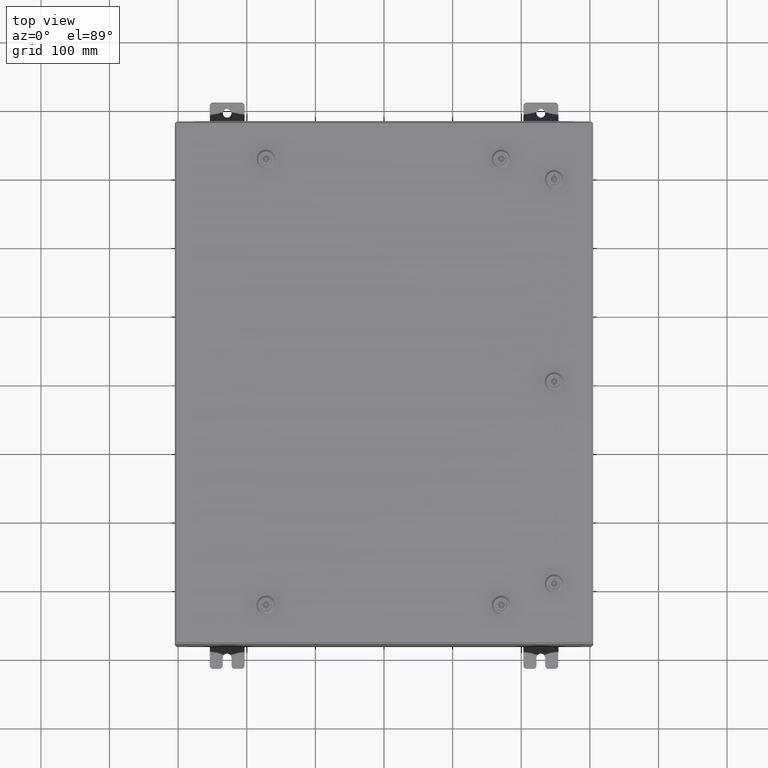
[diagram: clean part render]
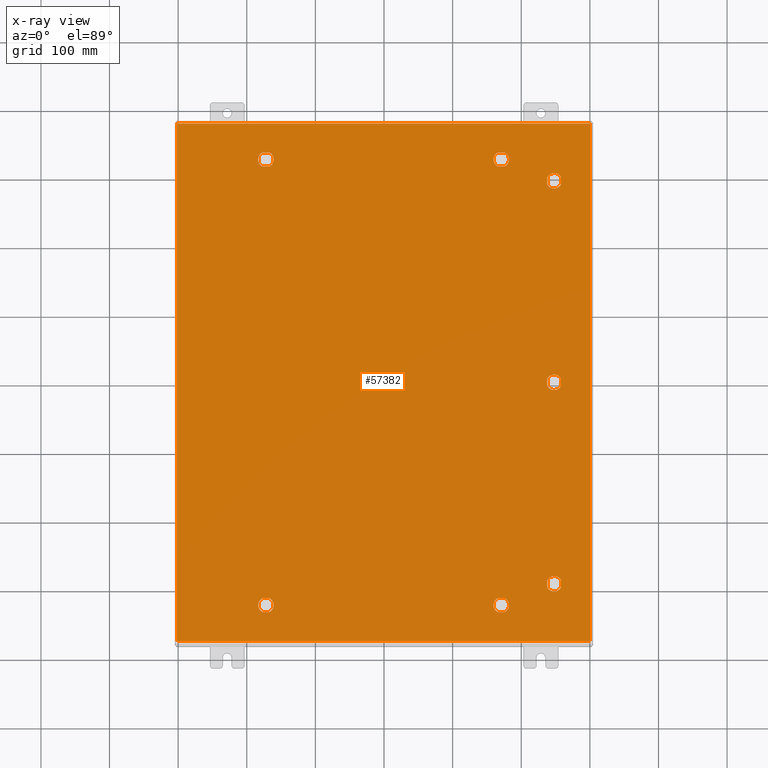
[diagram: x-ray — body ghosted, one internal face saturated and labeled with its STEP entity id]
A machine part, top view, then the same camera in x-ray: the body is ghosted and one INTERNAL B-rep face — a face not visible from any outside direction — is saturated and labeled: STEP entity #57382.
In plain terms, the highlighted planar face has unit normal (0, 0, -1).
Its self-contained STEP definition (entity closure, byte-faithful):
#402 = EDGE_CURVE ( 'NONE', #30557, #18148, #35172, .T. ) ;
#681 = EDGE_CURVE ( 'NONE', #5945, #29471, #63900, .T. ) ;
#805 = VERTEX_POINT ( 'NONE', #49653 ) ;
#1094 = ORIENTED_EDGE ( 'NONE', *, *, #25966, .T. ) ;
#1548 = AXIS2_PLACEMENT_3D ( 'NONE', #36167, #6493, #41132 ) ;
#1704 = DIRECTION ( 'NONE',  ( -1.000000000000000000, 0.0000000000000000000, 0.0000000000000000000 ) ) ;
#1781 = CARTESIAN_POINT ( 'NONE',  ( 6.550547624732099700, 12.39280000000000100, -0.07470000000000003000 ) ) ;
#2013 = CARTESIAN_POINT ( 'NONE',  ( 9.392800000000017100, -11.76195237526790500, -0.07470000000000003000 ) ) ;
#2717 = CARTESIAN_POINT ( 'NONE',  ( -6.949452375267869200, -12.39280000000000100, -0.07470000000000003000 ) ) ;
#2867 = DIRECTION ( 'NONE',  ( -0.0000000000000000000, -0.0000000000000000000, 1.000000000000000000 ) ) ;
#2883 = LINE ( 'NONE', #16751, #43902 ) ;
#2888 = VERTEX_POINT ( 'NONE', #6117 ) ;
#3058 = ORIENTED_EDGE ( 'NONE', *, *, #38019, .T. ) ;
#3141 = VECTOR ( 'NONE', #20493, 39.37007874015748100 ) ;
#3710 = AXIS2_PLACEMENT_3D ( 'NONE', #19213, #53998, #24218 ) ;
#3942 = EDGE_LOOP ( 'NONE', ( #64135, #36813, #4300, #39885 ) ) ;
#4017 = DIRECTION ( 'NONE',  ( -0.0000000000000000000, -0.0000000000000000000, 1.000000000000000000 ) ) ;
#4300 = ORIENTED_EDGE ( 'NONE', *, *, #40919, .T. ) ;
#4396 = VERTEX_POINT ( 'NONE', #33080 ) ;
#4746 = CARTESIAN_POINT ( 'NONE',  ( 10.18280000000000600, 0.1994523752679009100, -0.07470000000000000300 ) ) ;
#4906 = CARTESIAN_POINT ( 'NONE',  ( 9.392800000000015400, 0.1994523752679053800, -0.07470000000000003000 ) ) ;
#4921 = DIRECTION ( 'NONE',  ( -1.000000000000000000, 1.095739467627835200E-014, 0.0000000000000000000 ) ) ;
#5312 = CARTESIAN_POINT ( 'NONE',  ( 10.18280000000000600, -11.76195237526789900, -0.07470000000000003000 ) ) ;
#5361 = EDGE_CURVE ( 'NONE', #63397, #21407, #62866, .T. ) ;
#5407 = VERTEX_POINT ( 'NONE', #13595 ) ;
#5716 = CARTESIAN_POINT ( 'NONE',  ( 6.949452375267867400, -13.18279999999999300, -0.07470000000000003000 ) ) ;
#5847 = CARTESIAN_POINT ( 'NONE',  ( 9.787800000000007800, 11.56250000000001600, -0.07470000000000003000 ) ) ;
#5945 = VERTEX_POINT ( 'NONE', #10628 ) ;
#5997 = CIRCLE ( 'NONE', #39726, 0.4424999999999972800 ) ;
#6117 = CARTESIAN_POINT ( 'NONE',  ( -6.550547624732099700, 12.39279999999999800, -0.07470000000000000300 ) ) ;
#6164 = DIRECTION ( 'NONE',  ( -0.0000000000000000000, -0.0000000000000000000, 1.000000000000000000 ) ) ;
#6303 = DIRECTION ( 'NONE',  ( -1.000000000000000000, 0.0000000000000000000, 0.0000000000000000000 ) ) ;
#6324 = DIRECTION ( 'NONE',  ( -0.0000000000000000000, -0.0000000000000000000, 1.000000000000000000 ) ) ;
#6493 = DIRECTION ( 'NONE',  ( -0.0000000000000000000, -0.0000000000000000000, 1.000000000000000000 ) ) ;
#6522 = VERTEX_POINT ( 'NONE', #63119 ) ;
#6545 = ORIENTED_EDGE ( 'NONE', *, *, #402, .T. ) ;
#7694 = CIRCLE ( 'NONE', #40988, 0.4424999999999983400 ) ;
#7710 = VERTEX_POINT ( 'NONE', #44496 ) ;
#7747 = VERTEX_POINT ( 'NONE', #55777 ) ;
#7807 = VECTOR ( 'NONE', #36910, 39.37007874015748100 ) ;
#7886 = CARTESIAN_POINT ( 'NONE',  ( 6.550547624732101500, -12.39280000000000100, -0.07470000000000000300 ) ) ;
#7896 = CARTESIAN_POINT ( 'NONE',  ( 6.749999999999985800, -12.78779999999999700, -0.07470000000000003000 ) ) ;
#8446 = LINE ( 'NONE', #24631, #20025 ) ;
#8583 = CIRCLE ( 'NONE', #61103, 0.4424999999999972800 ) ;
#8841 = CARTESIAN_POINT ( 'NONE',  ( -6.307499999999987700, 12.78779999999999400, -0.07470000000000003000 ) ) ;
#8922 = DIRECTION ( 'NONE',  ( -1.000000000000000000, -1.095739467627835200E-014, 0.0000000000000000000 ) ) ;
#9034 = FACE_BOUND ( 'NONE', #52740, .T. ) ;
#9656 = VERTEX_POINT ( 'NONE', #12652 ) ;
#9668 = CARTESIAN_POINT ( 'NONE',  ( 6.550547624732099700, 12.39280000000000100, -0.07470000000000003000 ) ) ;
#9707 = LINE ( 'NONE', #48599, #34521 ) ;
#9779 = CIRCLE ( 'NONE', #25147, 0.4424999999999972800 ) ;
#9865 = DIRECTION ( 'NONE',  ( -8.218046007208770500E-015, -1.000000000000000000, 0.0000000000000000000 ) ) ;
#9889 = DIRECTION ( 'NONE',  ( -5.478697338139235800E-015, 1.000000000000000000, 0.0000000000000000000 ) ) ;
#10547 = LINE ( 'NONE', #4906, #60272 ) ;
#10628 = CARTESIAN_POINT ( 'NONE',  ( 9.392800000000011800, 11.36304762473213300, -0.07470000000000003000 ) ) ;
#10889 = LINE ( 'NONE', #12202, #7807 ) ;
#10952 = CARTESIAN_POINT ( 'NONE',  ( 10.18280000000000600, -0.1994523752678676000, -0.07470000000000003000 ) ) ;
#11051 = ORIENTED_EDGE ( 'NONE', *, *, #63249, .T. ) ;
#11188 = DIRECTION ( 'NONE',  ( -0.0000000000000000000, -0.0000000000000000000, 1.000000000000000000 ) ) ;
#11372 = ORIENTED_EDGE ( 'NONE', *, *, #49932, .T. ) ;
#11917 = CARTESIAN_POINT ( 'NONE',  ( 6.550547624732093500, 13.18279999999999000, -0.07470000000000000300 ) ) ;
#11960 = VERTEX_POINT ( 'NONE', #64157 ) ;
#11999 = CARTESIAN_POINT ( 'NONE',  ( 9.392800000000013600, -11.36304762473213300, -0.07470000000000003000 ) ) ;
#12094 = ORIENTED_EDGE ( 'NONE', *, *, #681, .T. ) ;
#12202 = CARTESIAN_POINT ( 'NONE',  ( 10.18280000000000600, -11.76195237526789900, -0.07470000000000003000 ) ) ;
#12411 = CARTESIAN_POINT ( 'NONE',  ( -6.550547624732099700, 12.39279999999999800, -0.07470000000000003000 ) ) ;
#12468 = ORIENTED_EDGE ( 'NONE', *, *, #45424, .F. ) ;
#12589 = CARTESIAN_POINT ( 'NONE',  ( -6.749999999999985800, -12.78779999999999900, -0.07470000000000003000 ) ) ;
#12652 = CARTESIAN_POINT ( 'NONE',  ( 10.18280000000000200, 11.76195237526789900, -0.07470000000000000300 ) ) ;
#12713 = EDGE_CURVE ( 'NONE', #805, #38322, #61273, .T. ) ;
#12844 = DIRECTION ( 'NONE',  ( -1.000000000000000000, 0.0000000000000000000, 0.0000000000000000000 ) ) ;
#13036 = LINE ( 'NONE', #25143, #52671 ) ;
#13264 = DIRECTION ( 'NONE',  ( 0.0000000000000000000, -1.000000000000000000, 0.0000000000000000000 ) ) ;
#13595 = CARTESIAN_POINT ( 'NONE',  ( 6.949452375267869200, 12.39280000000000100, -0.07470000000000003000 ) ) ;
#14090 = CARTESIAN_POINT ( 'NONE',  ( -6.749999999999985800, -12.78779999999999900, -0.07470000000000003000 ) ) ;
#14253 = ORIENTED_EDGE ( 'NONE', *, *, #37928, .T. ) ;
#14344 = CARTESIAN_POINT ( 'NONE',  ( -6.949452375267865600, 13.18279999999999000, -0.07470000000000003000 ) ) ;
#14445 = VERTEX_POINT ( 'NONE', #9668 ) ;
#14565 = EDGE_CURVE ( 'NONE', #7747, #20682, #21518, .T. ) ;
#14677 = EDGE_CURVE ( 'NONE', #23113, #6522, #31595, .T. ) ;
#14739 = EDGE_CURVE ( 'NONE', #21589, #24009, #18369, .T. ) ;
#14748 = AXIS2_PLACEMENT_3D ( 'NONE', #35998, #6324, #40965 ) ;
#14894 = DIRECTION ( 'NONE',  ( -0.0000000000000000000, -0.0000000000000000000, 1.000000000000000000 ) ) ;
#15833 = CIRCLE ( 'NONE', #35291, 0.4424999999999983400 ) ;
#16423 = AXIS2_PLACEMENT_3D ( 'NONE', #22079, #27060, #61817 ) ;
#16557 = CARTESIAN_POINT ( 'NONE',  ( 6.949452375267869200, -12.39280000000000100, -0.07470000000000003000 ) ) ;
#16624 = CARTESIAN_POINT ( 'NONE',  ( 11.84980000000000000, 14.84980000000000200, -0.07469999999999910000 ) ) ;
#16751 = CARTESIAN_POINT ( 'NONE',  ( -11.84980000000000000, -14.84979999999999500, -0.07470000000000019700 ) ) ;
#17076 = AXIS2_PLACEMENT_3D ( 'NONE', #43773, #32695, #22523 ) ;
#17091 = PLANE ( 'NONE',  #16423 ) ;
#17572 = DIRECTION ( 'NONE',  ( -1.000000000000000000, -4.938934225833714700E-015, 0.0000000000000000000 ) ) ;
#17746 = CARTESIAN_POINT ( 'NONE',  ( -6.550547624732101500, -12.39280000000000300, -0.07470000000000003000 ) ) ;
#18148 = VERTEX_POINT ( 'NONE', #59872 ) ;
#18174 = VECTOR ( 'NONE', #29434, 39.37007874015748100 ) ;
#18276 = EDGE_CURVE ( 'NONE', #62208, #7747, #15833, .T. ) ;
#18369 = CIRCLE ( 'NONE', #36456, 0.4424999999999972800 ) ;
#19065 = DIRECTION ( 'NONE',  ( -1.000000000000000000, 0.0000000000000000000, 0.0000000000000000000 ) ) ;
#19213 = CARTESIAN_POINT ( 'NONE',  ( 9.787800000000007800, 1.529834876451990400E-014, -0.07470000000000003000 ) ) ;
#19791 = CIRCLE ( 'NONE', #3710, 0.4424999999999972800 ) ;
#19942 = VECTOR ( 'NONE', #26631, 39.37007874015748100 ) ;
#20025 = VECTOR ( 'NONE', #9889, 39.37007874015748100 ) ;
#20276 = VERTEX_POINT ( 'NONE', #61693 ) ;
#20475 = DIRECTION ( 'NONE',  ( 1.000000000000000000, 1.095739467627835200E-014, 0.0000000000000000000 ) ) ;
#20493 = DIRECTION ( 'NONE',  ( 1.000000000000000000, -1.095739467627835200E-014, 0.0000000000000000000 ) ) ;
#20682 = VERTEX_POINT ( 'NONE', #54273 ) ;
#20724 = DIRECTION ( 'NONE',  ( -0.0000000000000000000, -0.0000000000000000000, 1.000000000000000000 ) ) ;
#21191 = LINE ( 'NONE', #16624, #60858 ) ;
#21275 = CARTESIAN_POINT ( 'NONE',  ( 10.18280000000000600, 11.36304762473213100, -0.07470000000000003000 ) ) ;
#21366 = CARTESIAN_POINT ( 'NONE',  ( 6.749999999999985800, -12.78779999999999700, -0.07470000000000003000 ) ) ;
#21407 = VERTEX_POINT ( 'NONE', #24346 ) ;
#21427 = VECTOR ( 'NONE', #31641, 39.37007874015748100 ) ;
#21518 = LINE ( 'NONE', #50253, #47864 ) ;
#21589 = VERTEX_POINT ( 'NONE', #5716 ) ;
#22079 = CARTESIAN_POINT ( 'NONE',  ( 0.0000000000000000000, 0.0000000000000000000, -0.07470000000000000300 ) ) ;
#22240 = FACE_BOUND ( 'NONE', #53709, .T. ) ;
#22413 = VERTEX_POINT ( 'NONE', #16557 ) ;
#22523 = DIRECTION ( 'NONE',  ( -1.000000000000000000, 0.0000000000000000000, 0.0000000000000000000 ) ) ;
#22774 = CIRCLE ( 'NONE', #1548, 0.4424999999999972800 ) ;
#22805 = ORIENTED_EDGE ( 'NONE', *, *, #43308, .T. ) ;
#23037 = EDGE_CURVE ( 'NONE', #22413, #44304, #62406, .T. ) ;
#23113 = VERTEX_POINT ( 'NONE', #41222 ) ;
#23126 = VERTEX_POINT ( 'NONE', #56249 ) ;
#23284 = CARTESIAN_POINT ( 'NONE',  ( 10.18280000000000700, -11.36304762473213100, -0.07470000000000003000 ) ) ;
#23758 = FACE_BOUND ( 'NONE', #3942, .T. ) ;
#24009 = VERTEX_POINT ( 'NONE', #33291 ) ;
#24109 = CARTESIAN_POINT ( 'NONE',  ( 6.749999999999984900, 12.78779999999999700, -0.07470000000000003000 ) ) ;
#24218 = DIRECTION ( 'NONE',  ( -1.000000000000000000, 2.664535259100377700E-015, 0.0000000000000000000 ) ) ;
#24308 = LINE ( 'NONE', #47952, #63913 ) ;
#24346 = CARTESIAN_POINT ( 'NONE',  ( -6.550547624732093500, 13.18279999999998400, -0.07470000000000003000 ) ) ;
#24631 = CARTESIAN_POINT ( 'NONE',  ( 10.18280000000000200, 0.1994523752679009100, -0.07470000000000003000 ) ) ;
#25032 = ORIENTED_EDGE ( 'NONE', *, *, #32994, .T. ) ;
#25143 = CARTESIAN_POINT ( 'NONE',  ( 9.392800000000015400, 11.76195237526790500, -0.07470000000000003000 ) ) ;
#25147 = AXIS2_PLACEMENT_3D ( 'NONE', #28415, #63161, #33397 ) ;
#25223 = VECTOR ( 'NONE', #4921, 39.37007874015748100 ) ;
#25236 = AXIS2_PLACEMENT_3D ( 'NONE', #5847, #6164, #6303 ) ;
#25245 = VERTEX_POINT ( 'NONE', #10952 ) ;
#25620 = EDGE_LOOP ( 'NONE', ( #32500, #62834, #3058, #34338 ) ) ;
#25919 = EDGE_CURVE ( 'NONE', #38322, #62208, #59112, .T. ) ;
#25966 = EDGE_CURVE ( 'NONE', #63139, #14445, #34197, .T. ) ;
#26092 = LINE ( 'NONE', #12411, #64127 ) ;
#26358 = DIRECTION ( 'NONE',  ( -1.000000000000000000, 0.0000000000000000000, 0.0000000000000000000 ) ) ;
#26631 = DIRECTION ( 'NONE',  ( 1.000000000000000000, 0.0000000000000000000, 0.0000000000000000000 ) ) ;
#26729 = DIRECTION ( 'NONE',  ( 1.000000000000000000, -0.0000000000000000000, -0.0000000000000000000 ) ) ;
#27060 = DIRECTION ( 'NONE',  ( 0.0000000000000000000, 0.0000000000000000000, -1.000000000000000000 ) ) ;
#27199 = CARTESIAN_POINT ( 'NONE',  ( 9.392800000000017100, -11.76195237526790500, -0.07470000000000000300 ) ) ;
#28415 = CARTESIAN_POINT ( 'NONE',  ( -6.749999999999985800, -12.78779999999999900, -0.07470000000000003000 ) ) ;
#28880 = EDGE_CURVE ( 'NONE', #51379, #47217, #7694, .T. ) ;
#28985 = VERTEX_POINT ( 'NONE', #27199 ) ;
#29072 = DIRECTION ( 'NONE',  ( -1.000000000000000000, 0.0000000000000000000, 0.0000000000000000000 ) ) ;
#29236 = CARTESIAN_POINT ( 'NONE',  ( 11.84980000000000000, -14.84979999999999300, -0.07470000000000019700 ) ) ;
#29434 = DIRECTION ( 'NONE',  ( 0.0000000000000000000, 1.000000000000000000, 0.0000000000000000000 ) ) ;
#29444 = AXIS2_PLACEMENT_3D ( 'NONE', #50487, #20724, #55513 ) ;
#29471 = VERTEX_POINT ( 'NONE', #21275 ) ;
#29572 = LINE ( 'NONE', #62740, #42788 ) ;
#29645 = AXIS2_PLACEMENT_3D ( 'NONE', #24109, #58886, #29072 ) ;
#29743 = AXIS2_PLACEMENT_3D ( 'NONE', #40874, #11188, #45870 ) ;
#29868 = DIRECTION ( 'NONE',  ( -8.218046007208784700E-015, -1.000000000000000000, 0.0000000000000000000 ) ) ;
#30214 = EDGE_CURVE ( 'NONE', #14445, #5407, #59618, .T. ) ;
#30254 = VERTEX_POINT ( 'NONE', #52056 ) ;
#30450 = EDGE_CURVE ( 'NONE', #2888, #63397, #53376, .T. ) ;
#30557 = VERTEX_POINT ( 'NONE', #14344 ) ;
#31325 = DIRECTION ( 'NONE',  ( -0.0000000000000000000, -0.0000000000000000000, 1.000000000000000000 ) ) ;
#31448 = ORIENTED_EDGE ( 'NONE', *, *, #39359, .T. ) ;
#31595 = CIRCLE ( 'NONE', #29743, 0.4424999999999972800 ) ;
#31641 = DIRECTION ( 'NONE',  ( 8.218046007208784700E-015, -1.000000000000000000, 0.0000000000000000000 ) ) ;
#32393 = VERTEX_POINT ( 'NONE', #5312 ) ;
#32500 = ORIENTED_EDGE ( 'NONE', *, *, #28880, .T. ) ;
#32501 = CARTESIAN_POINT ( 'NONE',  ( 6.749999999999984900, 12.78779999999999700, -0.07470000000000003000 ) ) ;
#32695 = DIRECTION ( 'NONE',  ( -0.0000000000000000000, -0.0000000000000000000, 1.000000000000000000 ) ) ;
#32994 = EDGE_CURVE ( 'NONE', #6522, #63139, #9707, .T. ) ;
#33080 = CARTESIAN_POINT ( 'NONE',  ( -11.84980000000000000, 14.84980000000000200, -0.07470000000000000300 ) ) ;
#33291 = CARTESIAN_POINT ( 'NONE',  ( 7.192499999999983000, -12.78779999999999700, -0.07470000000000003000 ) ) ;
#33397 = DIRECTION ( 'NONE',  ( -1.000000000000000000, 0.0000000000000000000, 0.0000000000000000000 ) ) ;
#33444 = EDGE_CURVE ( 'NONE', #47217, #28985, #59505, .T. ) ;
#33650 = CARTESIAN_POINT ( 'NONE',  ( -6.749999999999984900, 12.78779999999999400, -0.07470000000000003000 ) ) ;
#33734 = VERTEX_POINT ( 'NONE', #53115 ) ;
#33855 = DIRECTION ( 'NONE',  ( -1.000000000000000000, 5.478697338139250800E-015, 0.0000000000000000000 ) ) ;
#34197 = CIRCLE ( 'NONE', #29645, 0.4424999999999972800 ) ;
#34227 = ORIENTED_EDGE ( 'NONE', *, *, #14565, .T. ) ;
#34338 = ORIENTED_EDGE ( 'NONE', *, *, #63796, .T. ) ;
#34521 = VECTOR ( 'NONE', #8922, 39.37007874015748100 ) ;
#34736 = CIRCLE ( 'NONE', #14748, 0.4424999999999972800 ) ;
#34875 = CARTESIAN_POINT ( 'NONE',  ( -6.749999999999984900, 12.78779999999999400, -0.07470000000000003000 ) ) ;
#35088 = DIRECTION ( 'NONE',  ( -0.0000000000000000000, -0.0000000000000000000, 1.000000000000000000 ) ) ;
#35172 = CIRCLE ( 'NONE', #62231, 0.4424999999999972800 ) ;
#35291 = AXIS2_PLACEMENT_3D ( 'NONE', #12589, #47271, #17572 ) ;
#35309 = DIRECTION ( 'NONE',  ( -1.000000000000000000, 0.0000000000000000000, 0.0000000000000000000 ) ) ;
#35415 = FACE_BOUND ( 'NONE', #41677, .T. ) ;
#35998 = CARTESIAN_POINT ( 'NONE',  ( 9.787800000000009600, -11.56250000000001600, -0.07470000000000003000 ) ) ;
#36088 = EDGE_LOOP ( 'NONE', ( #12094, #51798, #22805, #14253 ) ) ;
#36129 = ORIENTED_EDGE ( 'NONE', *, *, #23037, .T. ) ;
#36166 = EDGE_CURVE ( 'NONE', #51322, #21589, #55913, .T. ) ;
#36167 = CARTESIAN_POINT ( 'NONE',  ( 6.749999999999985800, -12.78779999999999700, -0.07470000000000003000 ) ) ;
#36456 = AXIS2_PLACEMENT_3D ( 'NONE', #21366, #56135, #26358 ) ;
#36813 = ORIENTED_EDGE ( 'NONE', *, *, #37213, .T. ) ;
#36859 = ORIENTED_EDGE ( 'NONE', *, *, #57850, .T. ) ;
#36910 = DIRECTION ( 'NONE',  ( 5.478697338139220100E-015, 1.000000000000000000, 0.0000000000000000000 ) ) ;
#37213 = EDGE_CURVE ( 'NONE', #25245, #43111, #8446, .T. ) ;
#37493 = DIRECTION ( 'NONE',  ( -1.000000000000000000, 0.0000000000000000000, 0.0000000000000000000 ) ) ;
#37928 = EDGE_CURVE ( 'NONE', #23126, #5945, #13036, .T. ) ;
#38019 = EDGE_CURVE ( 'NONE', #28985, #32393, #34736, .T. ) ;
#38322 = VERTEX_POINT ( 'NONE', #17746 ) ;
#38392 = AXIS2_PLACEMENT_3D ( 'NONE', #14090, #48809, #19065 ) ;
#38633 = DIRECTION ( 'NONE',  ( -1.000000000000000000, 0.0000000000000000000, 0.0000000000000000000 ) ) ;
#39130 = EDGE_CURVE ( 'NONE', #30254, #25245, #53337, .T. ) ;
#39359 = EDGE_CURVE ( 'NONE', #24009, #22413, #5997, .T. ) ;
#39559 = CARTESIAN_POINT ( 'NONE',  ( -6.550547624732093500, 13.18279999999998400, -0.07470000000000003000 ) ) ;
#39726 = AXIS2_PLACEMENT_3D ( 'NONE', #7896, #42548, #12844 ) ;
#39885 = ORIENTED_EDGE ( 'NONE', *, *, #40294, .T. ) ;
#40294 = EDGE_CURVE ( 'NONE', #20276, #30254, #10547, .T. ) ;
#40566 = CARTESIAN_POINT ( 'NONE',  ( 6.550547624732101500, -12.39280000000000100, -0.07470000000000003000 ) ) ;
#40786 = DIRECTION ( 'NONE',  ( -1.000000000000000000, 0.0000000000000000000, 0.0000000000000000000 ) ) ;
#40874 = CARTESIAN_POINT ( 'NONE',  ( 6.749999999999984900, 12.78779999999999700, -0.07470000000000003000 ) ) ;
#40919 = EDGE_CURVE ( 'NONE', #43111, #20276, #19791, .T. ) ;
#40965 = DIRECTION ( 'NONE',  ( -1.000000000000000000, 0.0000000000000000000, 0.0000000000000000000 ) ) ;
#40988 = AXIS2_PLACEMENT_3D ( 'NONE', #61114, #31325, #1704 ) ;
#41132 = DIRECTION ( 'NONE',  ( -1.000000000000000000, 0.0000000000000000000, 0.0000000000000000000 ) ) ;
#41222 = CARTESIAN_POINT ( 'NONE',  ( 7.192499999999982100, 12.78779999999999700, -0.07470000000000003000 ) ) ;
#41399 = ORIENTED_EDGE ( 'NONE', *, *, #57622, .T. ) ;
#41677 = EDGE_LOOP ( 'NONE', ( #54157, #34227, #36859, #50148, #48233 ) ) ;
#42548 = DIRECTION ( 'NONE',  ( -0.0000000000000000000, -0.0000000000000000000, 1.000000000000000000 ) ) ;
#42609 = CARTESIAN_POINT ( 'NONE',  ( 6.550547624732094400, -13.18279999999999000, -0.07470000000000003000 ) ) ;
#42788 = VECTOR ( 'NONE', #52963, 39.37007874015748100 ) ;
#42856 = EDGE_LOOP ( 'NONE', ( #60264, #31448, #36129, #11372, #58337 ) ) ;
#43111 = VERTEX_POINT ( 'NONE', #4746 ) ;
#43308 = EDGE_CURVE ( 'NONE', #9656, #23126, #52433, .T. ) ;
#43773 = CARTESIAN_POINT ( 'NONE',  ( -6.749999999999984900, 12.78779999999999400, -0.07470000000000003000 ) ) ;
#43902 = VECTOR ( 'NONE', #26729, 39.37007874015748100 ) ;
#44289 = AXIS2_PLACEMENT_3D ( 'NONE', #44600, #14894, #49636 ) ;
#44304 = VERTEX_POINT ( 'NONE', #7886 ) ;
#44496 = CARTESIAN_POINT ( 'NONE',  ( 11.84980000000000000, 14.84980000000000200, -0.07470000000000000300 ) ) ;
#44543 = LINE ( 'NONE', #29236, #18174 ) ;
#44600 = CARTESIAN_POINT ( 'NONE',  ( 9.787800000000007800, 1.529834876451990400E-014, -0.07470000000000003000 ) ) ;
#45424 = EDGE_CURVE ( 'NONE', #4396, #33734, #24308, .T. ) ;
#45858 = VECTOR ( 'NONE', #33855, 39.37007874015748100 ) ;
#45870 = DIRECTION ( 'NONE',  ( -1.000000000000000000, 0.0000000000000000000, 0.0000000000000000000 ) ) ;
#46878 = ORIENTED_EDGE ( 'NONE', *, *, #5361, .T. ) ;
#47100 = DIRECTION ( 'NONE',  ( 1.000000000000000000, 0.0000000000000000000, 0.0000000000000000000 ) ) ;
#47217 = VERTEX_POINT ( 'NONE', #11999 ) ;
#47271 = DIRECTION ( 'NONE',  ( -0.0000000000000000000, -0.0000000000000000000, 1.000000000000000000 ) ) ;
#47864 = VECTOR ( 'NONE', #20475, 39.37007874015748100 ) ;
#47952 = CARTESIAN_POINT ( 'NONE',  ( -11.84980000000000000, 14.84980000000000000, -0.07470000000000019700 ) ) ;
#48233 = ORIENTED_EDGE ( 'NONE', *, *, #25919, .T. ) ;
#48599 = CARTESIAN_POINT ( 'NONE',  ( 6.550547624732093500, 13.18279999999999000, -0.07470000000000003000 ) ) ;
#48605 = FACE_BOUND ( 'NONE', #42856, .T. ) ;
#48809 = DIRECTION ( 'NONE',  ( -0.0000000000000000000, -0.0000000000000000000, 1.000000000000000000 ) ) ;
#49165 = VECTOR ( 'NONE', #40786, 39.37007874015748100 ) ;
#49315 = ORIENTED_EDGE ( 'NONE', *, *, #14677, .T. ) ;
#49636 = DIRECTION ( 'NONE',  ( -1.000000000000000000, 8.881784197001274000E-016, 0.0000000000000000000 ) ) ;
#49653 = CARTESIAN_POINT ( 'NONE',  ( -6.307499999999988600, -12.78779999999999900, -0.07470000000000003000 ) ) ;
#49932 = EDGE_CURVE ( 'NONE', #44304, #51322, #22774, .T. ) ;
#50018 = EDGE_CURVE ( 'NONE', #7710, #4396, #21191, .T. ) ;
#50148 = ORIENTED_EDGE ( 'NONE', *, *, #12713, .T. ) ;
#50253 = CARTESIAN_POINT ( 'NONE',  ( -6.550547624732094400, -13.18279999999999100, -0.07470000000000003000 ) ) ;
#50272 = CARTESIAN_POINT ( 'NONE',  ( 6.550547624732094400, -13.18279999999999000, -0.07470000000000003000 ) ) ;
#50487 = CARTESIAN_POINT ( 'NONE',  ( 9.787800000000007800, 11.56250000000001600, -0.07470000000000003000 ) ) ;
#51322 = VERTEX_POINT ( 'NONE', #42609 ) ;
#51379 = VERTEX_POINT ( 'NONE', #23284 ) ;
#51795 = ORIENTED_EDGE ( 'NONE', *, *, #60608, .T. ) ;
#51798 = ORIENTED_EDGE ( 'NONE', *, *, #52151, .T. ) ;
#52056 = CARTESIAN_POINT ( 'NONE',  ( 9.392800000000011800, -0.1994523752678671600, -0.07470000000000003000 ) ) ;
#52151 = EDGE_CURVE ( 'NONE', #29471, #9656, #29572, .T. ) ;
#52433 = CIRCLE ( 'NONE', #29444, 0.4424999999999972800 ) ;
#52671 = VECTOR ( 'NONE', #29868, 39.37007874015748100 ) ;
#52740 = EDGE_LOOP ( 'NONE', ( #6545, #41399, #60949, #46878, #51795 ) ) ;
#52963 = DIRECTION ( 'NONE',  ( -5.478697338139220100E-015, 1.000000000000000000, 0.0000000000000000000 ) ) ;
#53115 = CARTESIAN_POINT ( 'NONE',  ( -11.84980000000000000, -14.84979999999999500, -0.07470000000000000300 ) ) ;
#53337 = CIRCLE ( 'NONE', #44289, 0.4424999999999972800 ) ;
#53376 = CIRCLE ( 'NONE', #59373, 0.4424999999999972800 ) ;
#53709 = EDGE_LOOP ( 'NONE', ( #11051, #49315, #25032, #1094, #54584 ) ) ;
#53998 = DIRECTION ( 'NONE',  ( -0.0000000000000000000, -0.0000000000000000000, 1.000000000000000000 ) ) ;
#54157 = ORIENTED_EDGE ( 'NONE', *, *, #18276, .T. ) ;
#54273 = CARTESIAN_POINT ( 'NONE',  ( -6.550547624732094400, -13.18279999999999100, -0.07470000000000000300 ) ) ;
#54584 = ORIENTED_EDGE ( 'NONE', *, *, #30214, .T. ) ;
#55468 = EDGE_LOOP ( 'NONE', ( #64133, #64192, #12468, #55945 ) ) ;
#55513 = DIRECTION ( 'NONE',  ( -1.000000000000000000, 0.0000000000000000000, 0.0000000000000000000 ) ) ;
#55777 = CARTESIAN_POINT ( 'NONE',  ( -6.949452375267867400, -13.18279999999999500, -0.07470000000000003000 ) ) ;
#55913 = LINE ( 'NONE', #50272, #3141 ) ;
#55945 = ORIENTED_EDGE ( 'NONE', *, *, #50018, .F. ) ;
#56135 = DIRECTION ( 'NONE',  ( -0.0000000000000000000, -0.0000000000000000000, 1.000000000000000000 ) ) ;
#56249 = CARTESIAN_POINT ( 'NONE',  ( 9.392800000000015400, 11.76195237526790500, -0.07470000000000003000 ) ) ;
#57382 = ADVANCED_FACE ( 'NONE', ( #61871, #63387, #23758, #48605, #35415, #22240, #9034, #60314 ), #17091, .T. ) ;
#57584 = EDGE_CURVE ( 'NONE', #33734, #11960, #2883, .T. ) ;
#57622 = EDGE_CURVE ( 'NONE', #18148, #2888, #26092, .T. ) ;
#57850 = EDGE_CURVE ( 'NONE', #20682, #805, #9779, .T. ) ;
#58337 = ORIENTED_EDGE ( 'NONE', *, *, #36166, .T. ) ;
#58886 = DIRECTION ( 'NONE',  ( -0.0000000000000000000, -0.0000000000000000000, 1.000000000000000000 ) ) ;
#59112 = LINE ( 'NONE', #63607, #45858 ) ;
#59373 = AXIS2_PLACEMENT_3D ( 'NONE', #33650, #4017, #38633 ) ;
#59505 = LINE ( 'NONE', #2013, #21427 ) ;
#59618 = LINE ( 'NONE', #1781, #19942 ) ;
#59872 = CARTESIAN_POINT ( 'NONE',  ( -6.949452375267869200, 12.39279999999999800, -0.07470000000000003000 ) ) ;
#60264 = ORIENTED_EDGE ( 'NONE', *, *, #14739, .T. ) ;
#60272 = VECTOR ( 'NONE', #9865, 39.37007874015748100 ) ;
#60314 = FACE_OUTER_BOUND ( 'NONE', #55468, .T. ) ;
#60608 = EDGE_CURVE ( 'NONE', #21407, #30557, #63280, .T. ) ;
#60858 = VECTOR ( 'NONE', #60933, 39.37007874015748100 ) ;
#60933 = DIRECTION ( 'NONE',  ( -1.000000000000000000, -0.0000000000000000000, -0.0000000000000000000 ) ) ;
#60949 = ORIENTED_EDGE ( 'NONE', *, *, #30450, .T. ) ;
#61103 = AXIS2_PLACEMENT_3D ( 'NONE', #32501, #2867, #37493 ) ;
#61114 = CARTESIAN_POINT ( 'NONE',  ( 9.787800000000009600, -11.56250000000001600, -0.07470000000000003000 ) ) ;
#61273 = CIRCLE ( 'NONE', #38392, 0.4424999999999972800 ) ;
#61275 = EDGE_CURVE ( 'NONE', #11960, #7710, #44543, .T. ) ;
#61693 = CARTESIAN_POINT ( 'NONE',  ( 9.392800000000015400, 0.1994523752679053200, -0.07470000000000003000 ) ) ;
#61817 = DIRECTION ( 'NONE',  ( -1.000000000000000000, 0.0000000000000000000, -0.0000000000000000000 ) ) ;
#61871 = FACE_BOUND ( 'NONE', #25620, .T. ) ;
#62208 = VERTEX_POINT ( 'NONE', #2717 ) ;
#62231 = AXIS2_PLACEMENT_3D ( 'NONE', #34875, #35088, #35309 ) ;
#62406 = LINE ( 'NONE', #40566, #49165 ) ;
#62740 = CARTESIAN_POINT ( 'NONE',  ( 10.18280000000000200, 11.76195237526789900, -0.07470000000000003000 ) ) ;
#62834 = ORIENTED_EDGE ( 'NONE', *, *, #33444, .T. ) ;
#62866 = CIRCLE ( 'NONE', #17076, 0.4424999999999972800 ) ;
#63119 = CARTESIAN_POINT ( 'NONE',  ( 6.949452375267865600, 13.18279999999999300, -0.07470000000000003000 ) ) ;
#63139 = VERTEX_POINT ( 'NONE', #11917 ) ;
#63161 = DIRECTION ( 'NONE',  ( -0.0000000000000000000, -0.0000000000000000000, 1.000000000000000000 ) ) ;
#63249 = EDGE_CURVE ( 'NONE', #5407, #23113, #8583, .T. ) ;
#63280 = LINE ( 'NONE', #39559, #25223 ) ;
#63387 = FACE_BOUND ( 'NONE', #36088, .T. ) ;
#63397 = VERTEX_POINT ( 'NONE', #8841 ) ;
#63607 = CARTESIAN_POINT ( 'NONE',  ( -6.550547624732101500, -12.39280000000000300, -0.07470000000000003000 ) ) ;
#63796 = EDGE_CURVE ( 'NONE', #32393, #51379, #10889, .T. ) ;
#63900 = CIRCLE ( 'NONE', #25236, 0.4424999999999983400 ) ;
#63913 = VECTOR ( 'NONE', #13264, 39.37007874015748100 ) ;
#64127 = VECTOR ( 'NONE', #47100, 39.37007874015748100 ) ;
#64133 = ORIENTED_EDGE ( 'NONE', *, *, #61275, .F. ) ;
#64135 = ORIENTED_EDGE ( 'NONE', *, *, #39130, .T. ) ;
#64157 = CARTESIAN_POINT ( 'NONE',  ( 11.84980000000000000, -14.84979999999999500, -0.07470000000000000300 ) ) ;
#64192 = ORIENTED_EDGE ( 'NONE', *, *, #57584, .F. ) ;